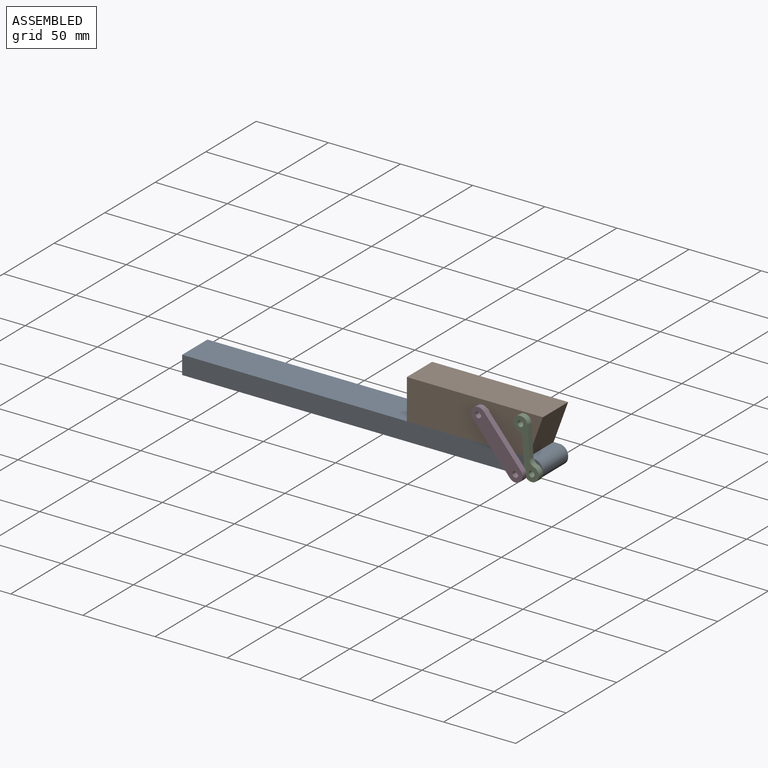
[diagram: assembled view]
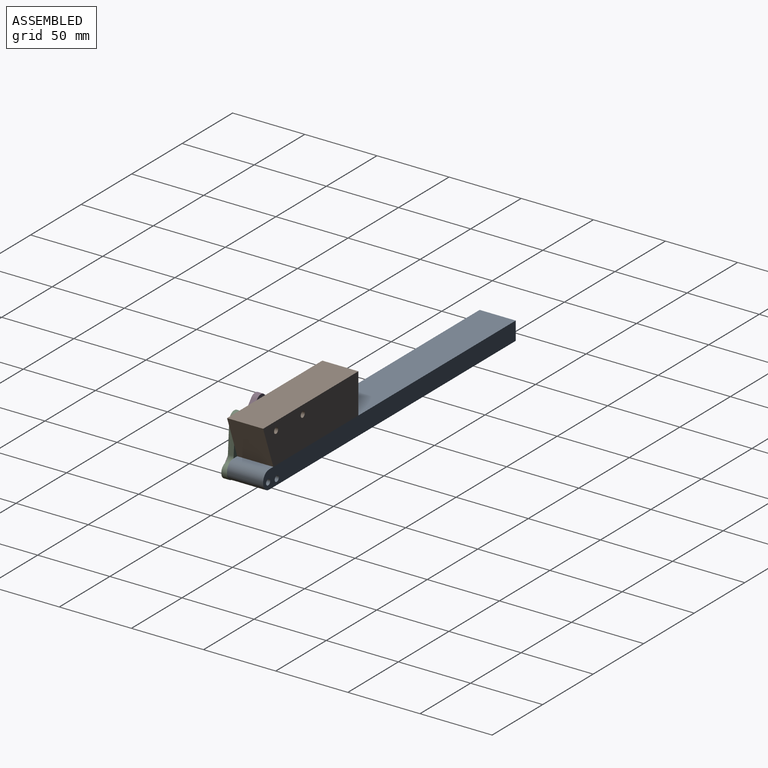
[diagram: assembled view, second angle]
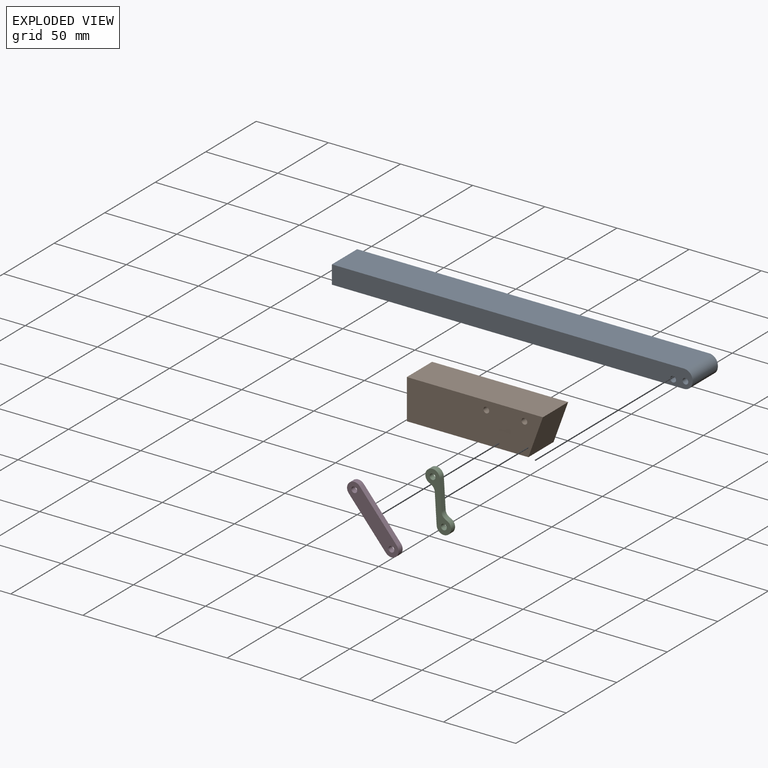
[diagram: exploded view]
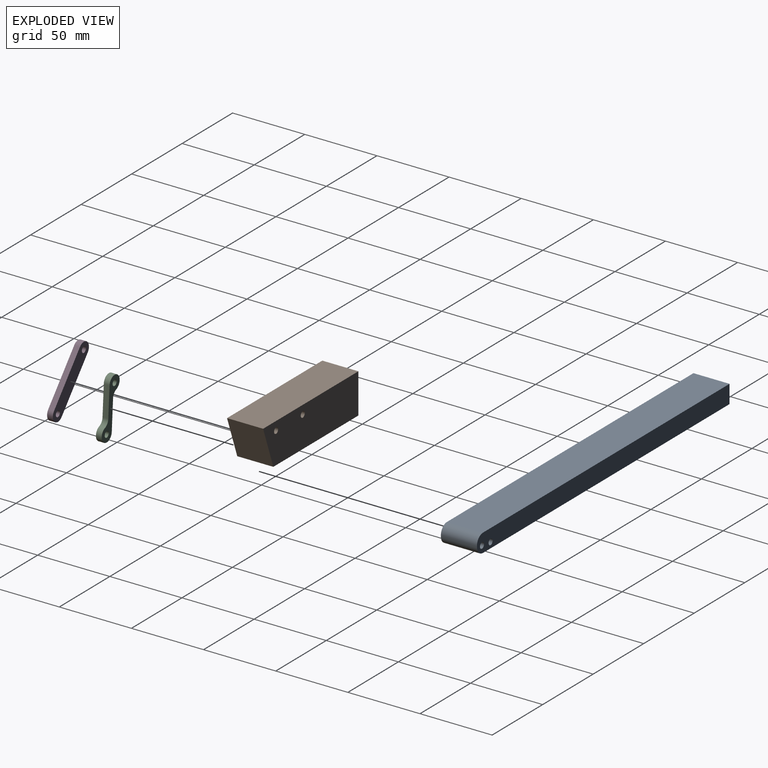
[diagram: exploded view, second angle]
ASSEMBLY  parts=4 mates=4
PART A: 10 faces, bbox 250x25x12.7 mm
  f0: plane 244x25mm, normal (0,0,-1), area 6100mm2, adj f4,f6,f7,f8
  f1: plane 25x0.7mm, normal (1,0,0), area 17.5mm2, adj f6,f7,f8,f9
  f2: plane 244x25mm, normal (0,0,1), area 6100mm2, adj f4,f6,f7,f9
  f3: cylinder r=2mm len=25mm, axis (0,1,0), area 314.2mm2, adj f6,f7
  f4: plane 25x12.7mm, normal (-1,0,0), area 317.5mm2, adj f0,f2,f6,f7
  f5: cylinder r=2mm len=25mm, axis (0,1,0), area 314.2mm2, adj f6,f7
  f6: plane 250x12.7mm, normal (0,-1,0), area 3134.4mm2, adj f0,f1,f2,f3,f4,f5,f8,f9
  f7: plane 250x12.7mm, normal (0,1,0), area 3134.4mm2, adj f0,f1,f2,f3,f4,f5,f8,f9
  f8: cylinder r=6mm len=25mm, axis (0,1,0), area 235.6mm2, adj f0,f1,f6,f7
  f9: cylinder r=6mm len=25mm, axis (0,-1,0), area 235.6mm2, adj f1,f2,f6,f7
PART B: 8 faces, bbox 94.3x25x27.7 mm
  f0: plane 84.21x25mm, normal (0,0,-1), area 2105.3mm2, adj f1,f4,f6,f7
  f1: plane 27.7x25mm, normal (0.94,0,-0.34), area 736.9mm2, adj f0,f2,f6,f7
  f2: plane 94.29x25mm, normal (0,0,1), area 2357.3mm2, adj f1,f4,f6,f7
  f3: cylinder r=2mm len=25mm, axis (0,1,0), area 314.2mm2, adj f6,f7
  f4: plane 27.7x25mm, normal (-1,0,0), area 692.5mm2, adj f0,f2,f6,f7
  f5: cylinder r=2mm len=25mm, axis (0,1,0), area 314.2mm2, adj f6,f7
  f6: plane 94.29x27.7mm, normal (0,-1,0), area 2447.2mm2, adj f0,f1,f2,f3,f4,f5
  f7: plane 94.29x27.7mm, normal (0,1,0), area 2447.2mm2, adj f0,f1,f2,f3,f4,f5
PART C: 10 faces, bbox 36.5x4x25 mm
  f0: cylinder r=5mm len=9.98mm, axis (0,-1,0), area 86mm2, adj f4,f6,f7,f8
  f1: plane 19.64x6.46mm, normal (0.31,0,-0.95), area 82.7mm2, adj f2,f6,f7,f8
  f2: cylinder r=5mm len=9.98mm, axis (0,-1,0), area 86mm2, adj f1,f6,f7,f9
  f3: cylinder r=2mm len=4mm, axis (0,-1,0), area 50.3mm2, adj f6,f7
  f4: plane 19.64x6.46mm, normal (-0.31,0,0.95), area 82.7mm2, adj f0,f6,f7,f9
  f5: cylinder r=2mm len=4mm, axis (0,-1,0), area 50.3mm2, adj f6,f7
  f6: plane 36.47x25mm, normal (0,1,0), area 228mm2, adj f0,f1,f2,f3,f4,f5,f8,f9
  f7: plane 36.47x25mm, normal (0,-1,0), area 228mm2, adj f0,f1,f2,f3,f4,f5,f8,f9
  f8: cylinder r=5mm len=4.27mm, axis (0,-1,0), area 23.1mm2, adj f0,f1,f6,f7
  f9: cylinder r=5mm len=4.27mm, axis (0,-1,0), area 23.1mm2, adj f2,f4,f6,f7
PART D: 8 faces, bbox 35.7x4x40.4 mm
  f0: plane 30.4x25.73mm, normal (-0.76,0,-0.65), area 159.3mm2, adj f1,f3,f6,f7
  f1: cylinder r=5mm len=8.82mm, axis (0,-1,0), area 62.8mm2, adj f0,f2,f6,f7
  f2: plane 30.4x25.73mm, normal (0.76,0,0.65), area 159.3mm2, adj f1,f3,f6,f7
  f3: cylinder r=5mm len=8.82mm, axis (0,-1,0), area 62.8mm2, adj f0,f2,f6,f7
  f4: cylinder r=2mm len=4mm, axis (0,-1,0), area 50.3mm2, adj f6,f7
  f5: cylinder r=2mm len=4mm, axis (0,-1,0), area 50.3mm2, adj f6,f7
  f6: plane 40.4x35.73mm, normal (0,1,0), area 451.6mm2, adj f0,f1,f2,f3,f4,f5
  f7: plane 40.4x35.73mm, normal (0,-1,0), area 451.6mm2, adj f0,f1,f2,f3,f4,f5
PLACE A t=(17.04,-36.82,25.87)mm fixed
PLACE B rot(axis=(0,-1,0),0deg) t=(17.04,-36.82,25.87)mm
PLACE C rot(axis=(0,-1,0),75.4deg) t=(-1.97,-65.82,54.35)mm
PLACE D rot(axis=(0,1,0.01),0deg) t=(17.04,-73.82,25.87)mm
MATE revolute B.f3 <-> D.f3  axis (0,-1,0) through (-22.18,-61.82,47.57)mm
MATE revolute A.f3 <-> C.f0  axis (0,-1,0) through (12.04,-61.82,18.17)mm
MATE revolute B.f5 <-> C.f2  axis (0,-1,0) through (4.22,-61.82,47.57)mm
MATE revolute A.f5 <-> D.f1  axis (0,-1,0) through (3.54,-61.82,17.17)mm
